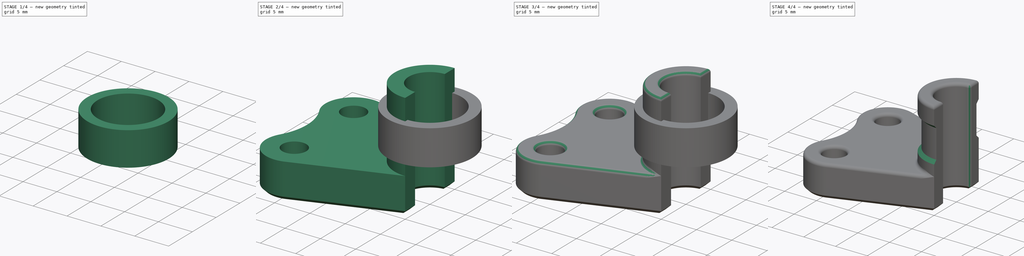
[diagram: build sequence overview — one tinted view per stage of 4, left to right]
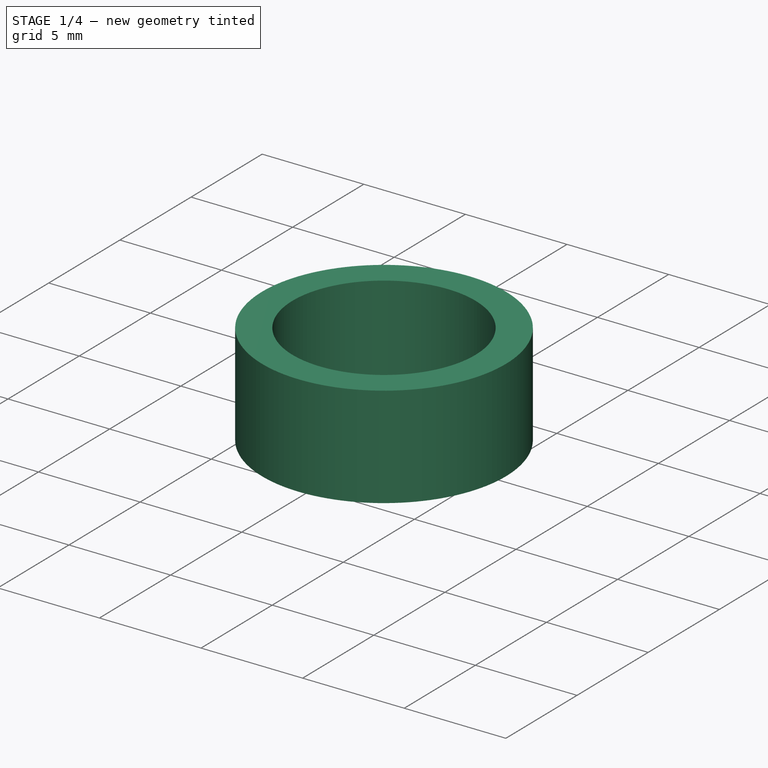
[diagram: stage 1 of 4 — iso view after this stage's code; geometry added in this stage tinted green]
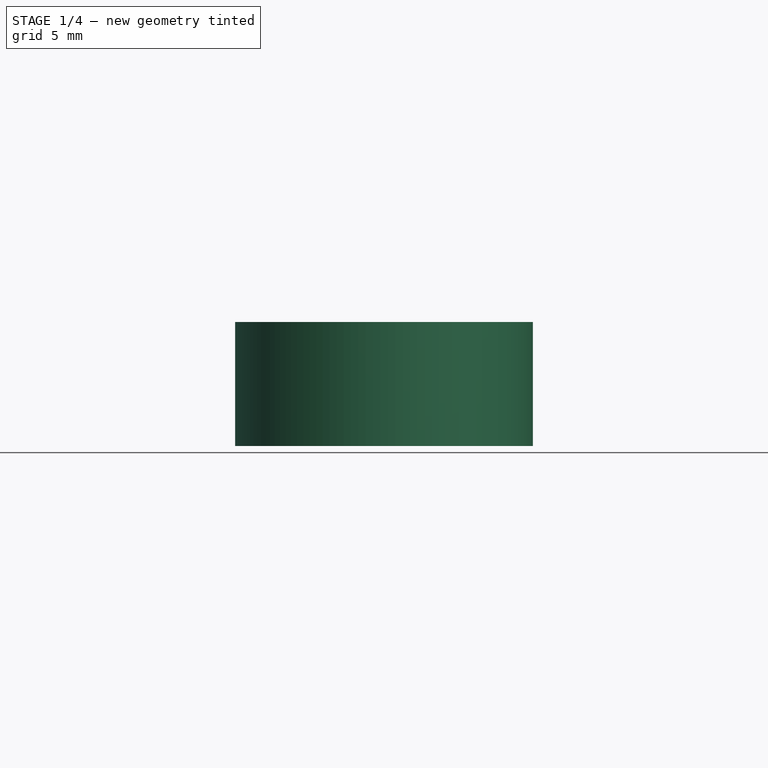
[diagram: stage 1 of 4 — front view after this stage's code; geometry added in this stage tinted green]
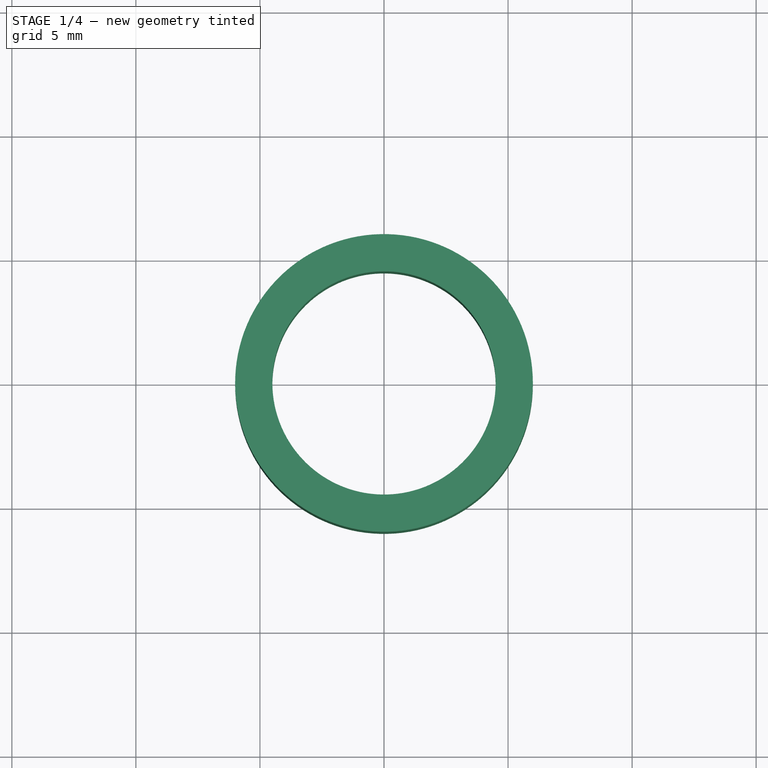
[diagram: stage 1 of 4 — top view after this stage's code; geometry added in this stage tinted green]
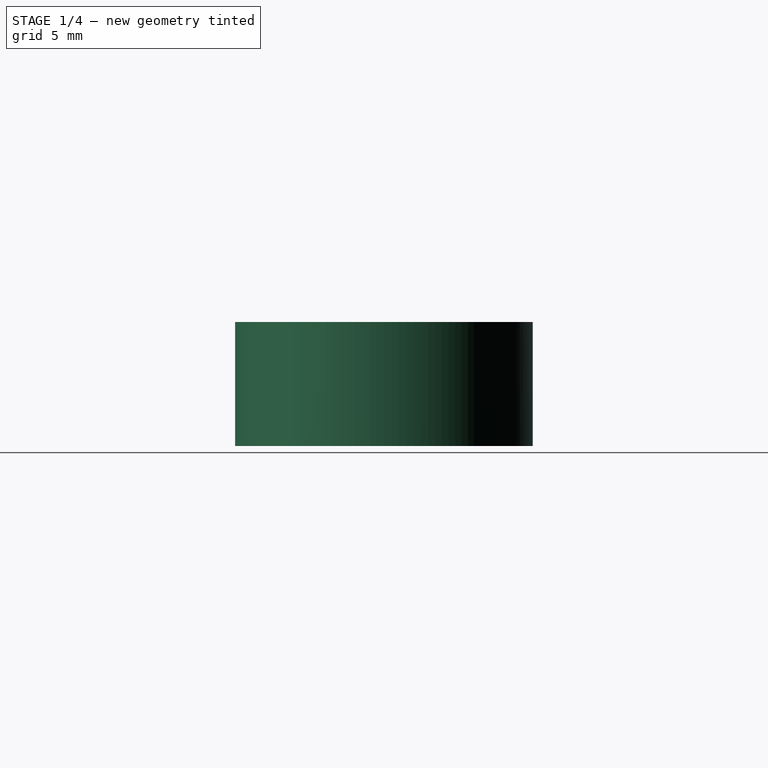
[diagram: stage 1 of 4 — right view after this stage's code; geometry added in this stage tinted green]
FCSTD DOCUMENT  (FreeCAD 0.16R6712 (Git))
Label: cables_effector
License: All rights reserved
LicenseURL: http://en.wikipedia.org/wiki/All_rights_reserved
objects: PartDesign::Fillet×3, Sketcher::SketchObject×2, PartDesign::Pad×2, PartDesign::Chamfer×2, Part::Cylinder×2, Part::Cut×2
note: 15 computed .brp shape members not serialized (recipe doc carries the construction recipe); baked Part::Feature solids carry a one-line shape summary decoded from their .brp

FEATURE [Part::Cylinder] Cylinder  label="Cilindro"
  Angle = 360
  Height = 5
  Placement = pos=(0,0,7) rot=(0,0,1;0rad)
  Radius = 4.5
FEATURE [Part::Cylinder] Cylinder001  label="Cilindro001"
  Angle = 360
  Height = 5
  Placement = pos=(0,0,7) rot=(0,0,1;0rad)
  Radius = 6
FEATURE [Part::Cut] Cut
  Base = -> Cylinder001
  Tool = -> Cylinder
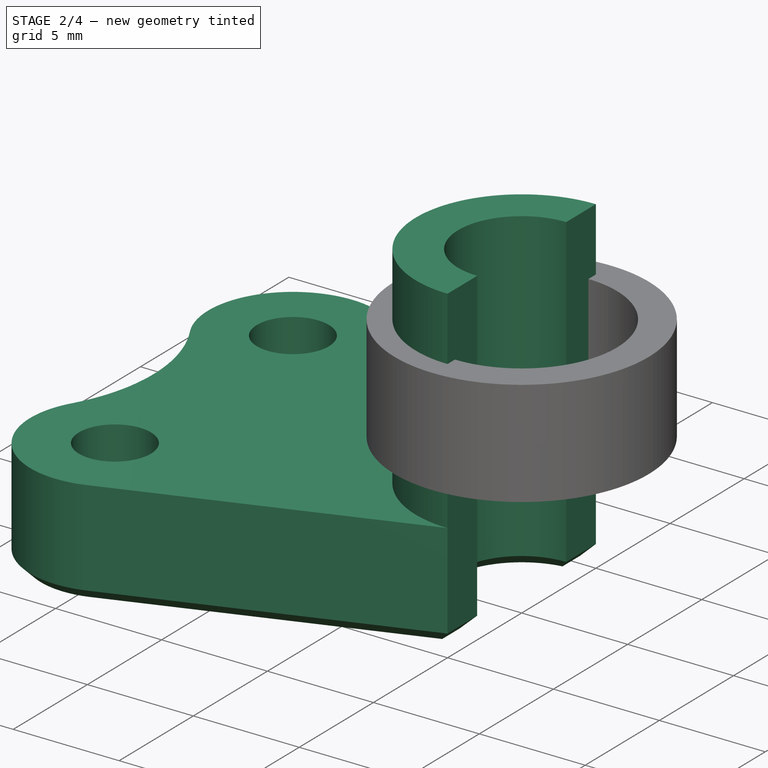
[diagram: stage 2 of 4 — iso view after this stage's code; geometry added in this stage tinted green]
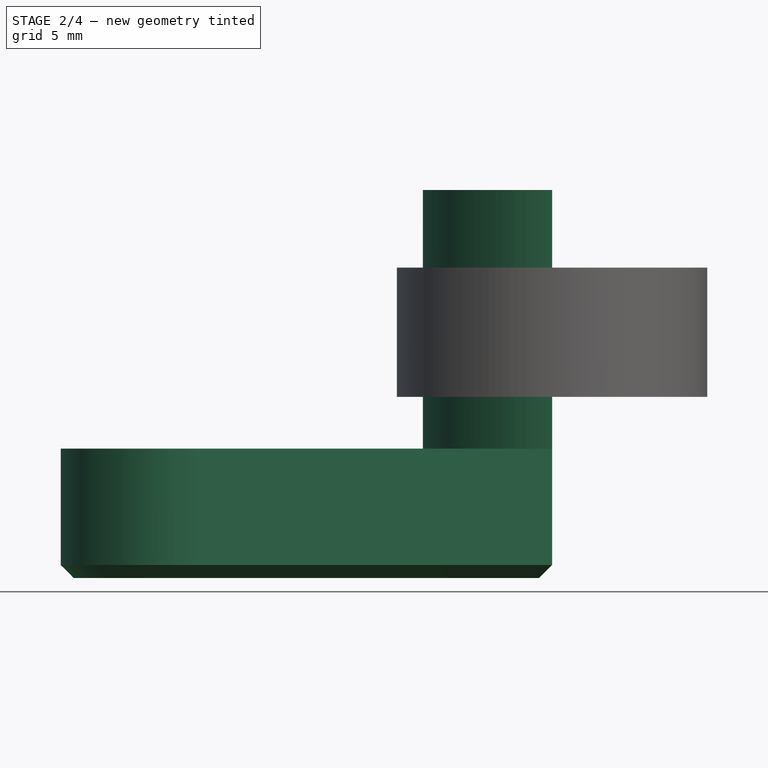
[diagram: stage 2 of 4 — front view after this stage's code; geometry added in this stage tinted green]
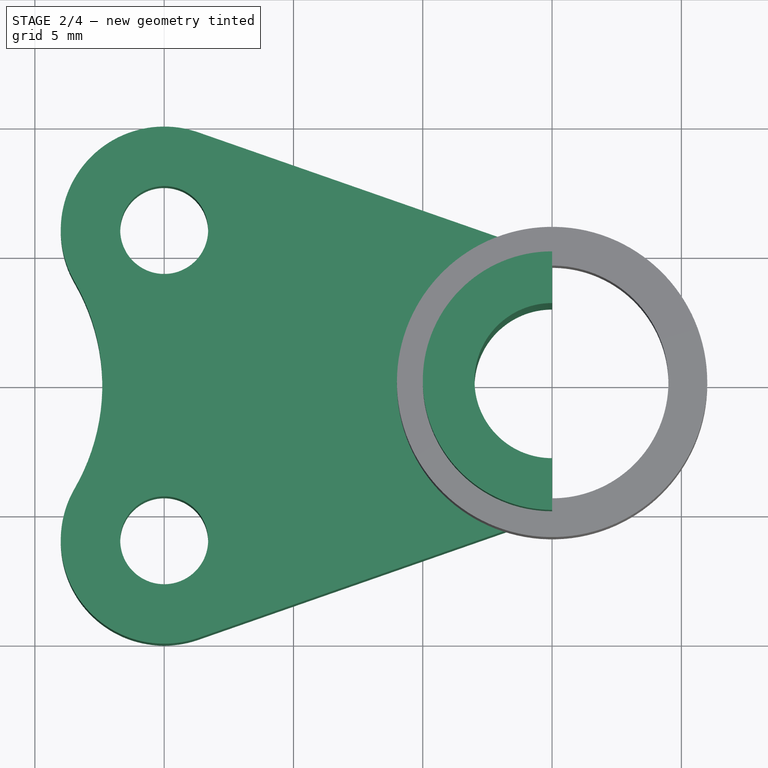
[diagram: stage 2 of 4 — top view after this stage's code; geometry added in this stage tinted green]
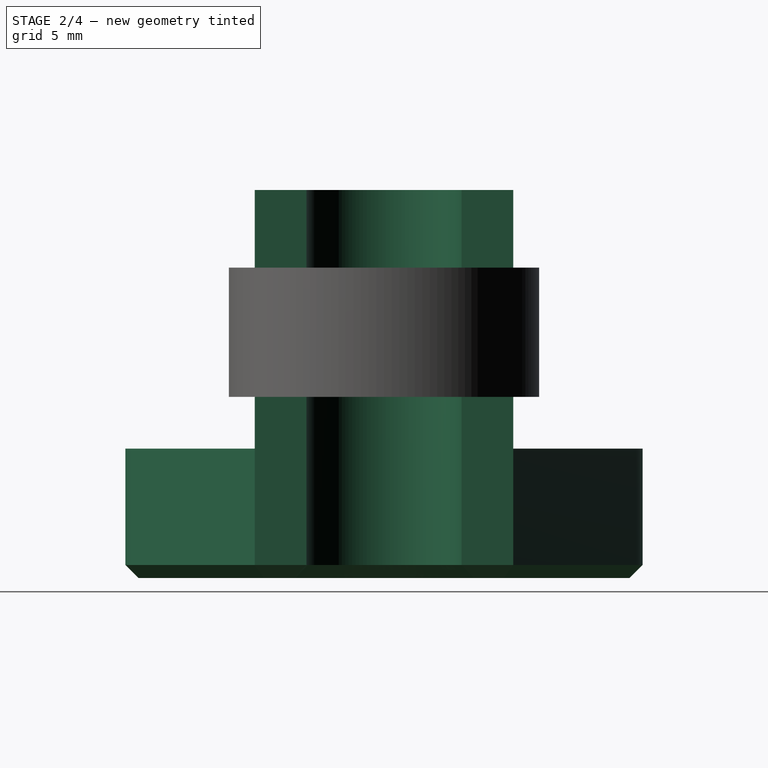
[diagram: stage 2 of 4 — right view after this stage's code; geometry added in this stage tinted green]
FEATURE [Sketcher::SketchObject] Sketch
  sketch-geometry (10):
    g0: ArcOfCircle CenterX=0 CenterY=0 CenterZ=0 NormalX=0 NormalY=0 NormalZ=1 Radius=3 StartAngle=1.5708 EndAngle=4.71239
    g1: Circle CenterX=-15 CenterY=6 CenterZ=0 NormalX=0 NormalY=0 NormalZ=1 Radius=1.7
    g2: Circle CenterX=-15 CenterY=-6 CenterZ=0 NormalX=0 NormalY=0 NormalZ=1 Radius=1.7
    g3: ArcOfCircle CenterX=-15 CenterY=6 CenterZ=0 NormalX=0 NormalY=0 NormalZ=1 Radius=4 StartAngle=1.23491 EndAngle=3.66519
    g4: ArcOfCircle CenterX=-15 CenterY=-6 CenterZ=0 NormalX=0 NormalY=0 NormalZ=1 Radius=4 StartAngle=2.61799 EndAngle=5.04828
    g5: LineSegment StartX=-13.6816 StartY=9.77648 StartZ=0 EndX=0 EndY=5 EndZ=0
    g6: LineSegment StartX=-13.6816 StartY=-9.77647 StartZ=0 EndX=0 EndY=-5 EndZ=0
    g7: ArcOfCircle CenterX=-25.3923 CenterY=0 CenterZ=0 NormalX=0 NormalY=0 NormalZ=1 Radius=8 StartAngle=5.75959 EndAngle=6.80678
    g8: LineSegment StartX=0 StartY=5 StartZ=0 EndX=0 EndY=3 EndZ=0
    g9: LineSegment StartX=0 StartY=-5 StartZ=0 EndX=0 EndY=-3 EndZ=0
  constraints (30):
    c: Coincident(g0,g-1)
    c: Radius(g1) = 1.7
    c: Equal(g1,g2)
    c: Symmetric(g2,g1,g-1)
    c: DistanceY(g2,g1) = 12
    c: DistanceX(g2,g-1) = 15
    c: Radius(g0) = 3
    c: PointOnObject(g0,g-2)
    c: PointOnObject(g0,g-2)
    c: Coincident(g3,g1)
    c: Coincident(g4,g2)
    c: Coincident(g5,g3)
    c: Coincident(g6,g4)
    c: Tangent(g3,g5)
    c: Tangent(g4,g6)
    c: Radius(g3) = 4
    c: PointOnObject(g7,g-1)
    c: Coincident(g7,g3)
    c: Coincident(g7,g4)
    c: Distance(g7,g2) = 12
    c: Tangent(g7,g4)
    c: Tangent(g7,g3)
    c: Coincident(g8,g5)
    c: Coincident(g8,g0)
    c: Coincident(g9,g6)
    c: Coincident(g9,g0)
    c: PointOnObject(g6,g-2)
    c: PointOnObject(g5,g-2)
    c: DistanceY(g9,g9) = 2
    c: DistanceY(g8,g8) = 2
FEATURE [PartDesign::Pad] Pad
  Length = 5
  Length2 = 100
  Sketch = -> Sketch
  Type = 0
FEATURE [PartDesign::Chamfer] Chamfer
  Base = -> Pad [Edge3,Edge6,Edge9,Edge12,Edge15,Edge18,Edge21,Edge23,Edge26,Edge29]
  Size = 0.5
FEATURE [Sketcher::SketchObject] Sketch001
  ExternalGeometry = -> [Chamfer]
  Placement = pos=(0,0,5) rot=(0,0,1;0rad)
  Support = -> Chamfer [Face4]
  sketch-geometry (4):
    g0: ArcOfCircle CenterX=0 CenterY=0 CenterZ=0 NormalX=0 NormalY=0 NormalZ=1 Radius=5 StartAngle=1.5708 EndAngle=4.71239
    g1: ArcOfCircle CenterX=0 CenterY=0 CenterZ=0 NormalX=0 NormalY=0 NormalZ=1 Radius=3 StartAngle=1.5708 EndAngle=4.71239
    g2: LineSegment StartX=0 StartY=3 StartZ=0 EndX=0 EndY=5 EndZ=0
    g3: LineSegment StartX=0 StartY=-5 StartZ=0 EndX=0 EndY=-3 EndZ=0
  constraints (10):
    c: Coincident(g0,g-1)
    c: Coincident(g0,g-4)
    c: Coincident(g0,g-5)
    c: Coincident(g1,g-1)
    c: Coincident(g1,g-3)
    c: Coincident(g1,g-3)
    c: Coincident(g2,g1)
    c: Coincident(g2,g0)
    c: Coincident(g3,g0)
    c: Coincident(g3,g1)
FEATURE [PartDesign::Pad] Pad001
  Length = 10
  Length2 = 100
  Sketch = -> Sketch001
  Type = 0
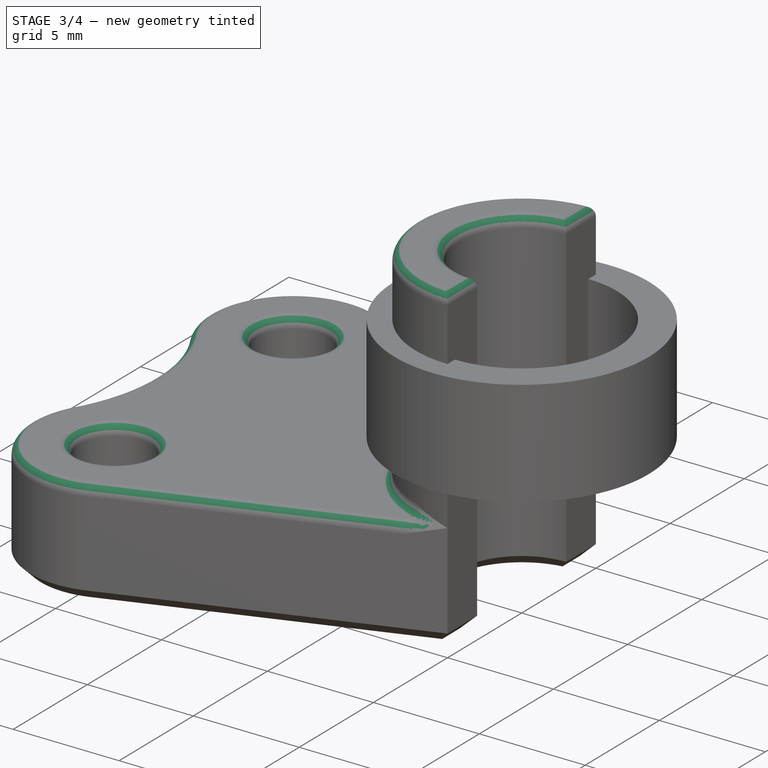
[diagram: stage 3 of 4 — iso view after this stage's code; geometry added in this stage tinted green]
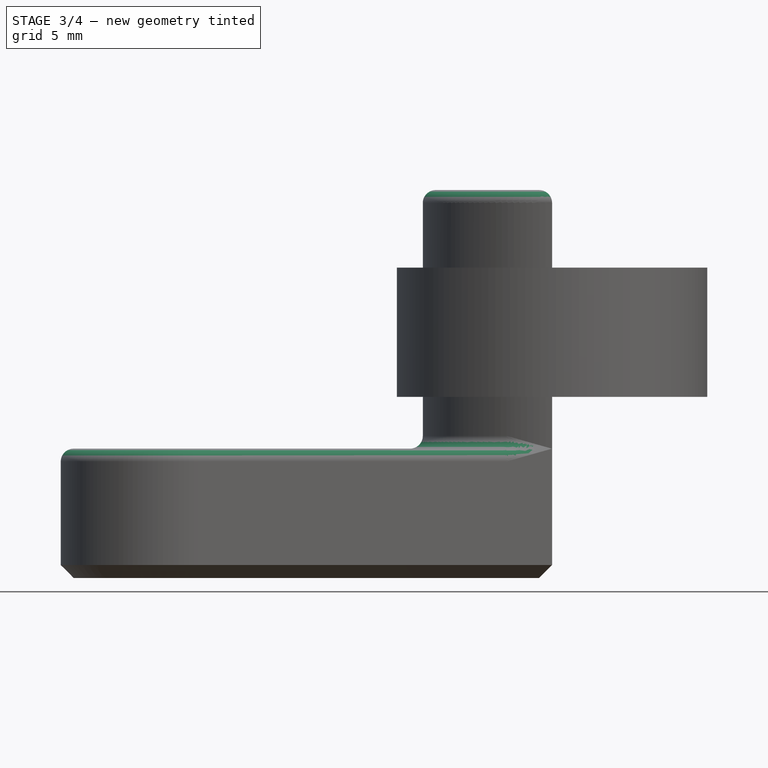
[diagram: stage 3 of 4 — front view after this stage's code; geometry added in this stage tinted green]
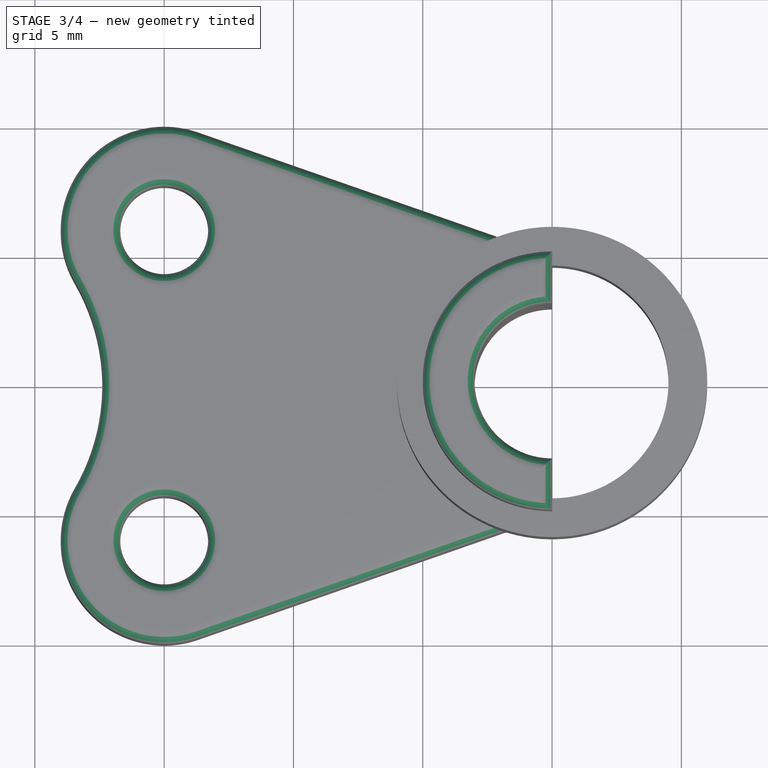
[diagram: stage 3 of 4 — top view after this stage's code; geometry added in this stage tinted green]
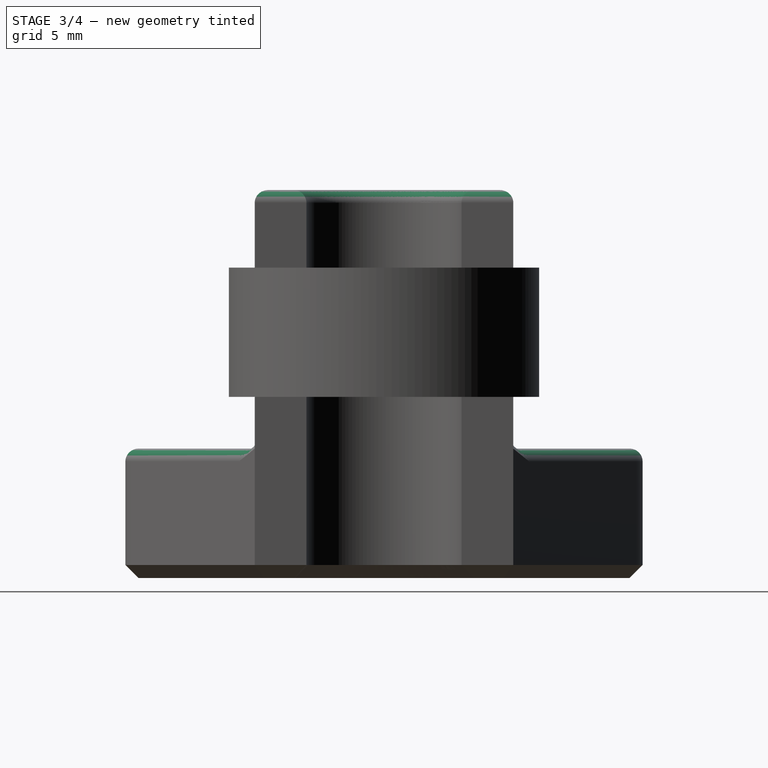
[diagram: stage 3 of 4 — right view after this stage's code; geometry added in this stage tinted green]
FEATURE [PartDesign::Fillet] Fillet
  Base = -> Pad001 [Edge8,Edge6,Edge9,Edge10,Edge11,Edge12,Edge13,Edge14]
  Radius = 0.5
FEATURE [PartDesign::Fillet] Fillet001
  Base = -> Fillet [Edge16,Edge4,Edge13,Edge17]
  Radius = 0.5
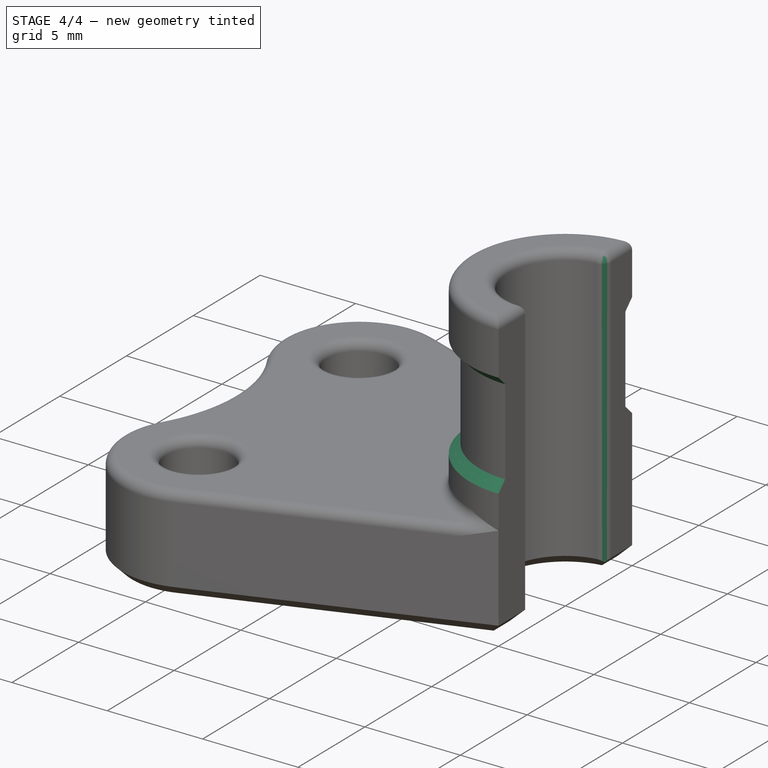
[diagram: stage 4 of 4 — iso view after this stage's code; geometry added in this stage tinted green]
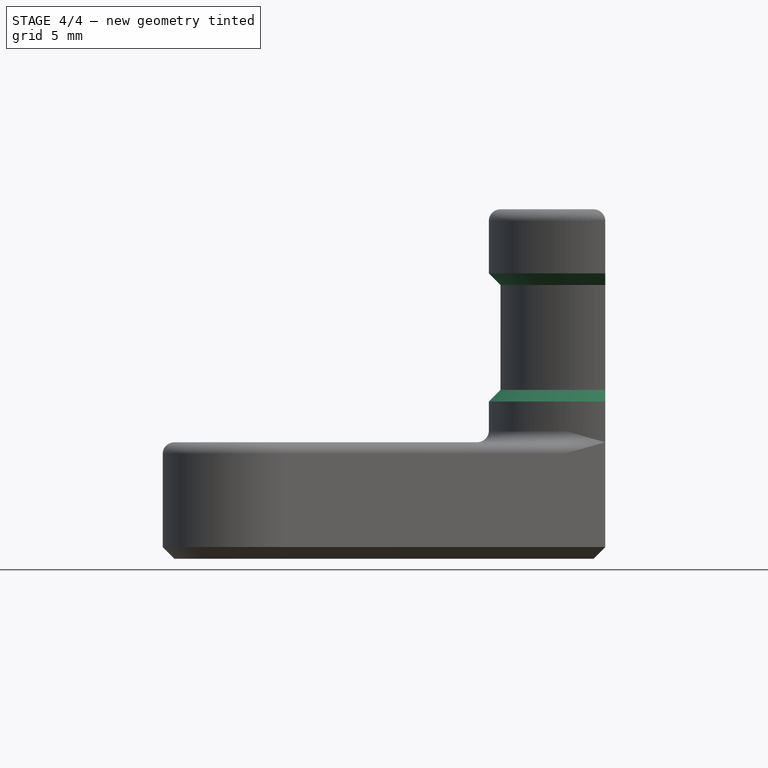
[diagram: stage 4 of 4 — front view after this stage's code; geometry added in this stage tinted green]
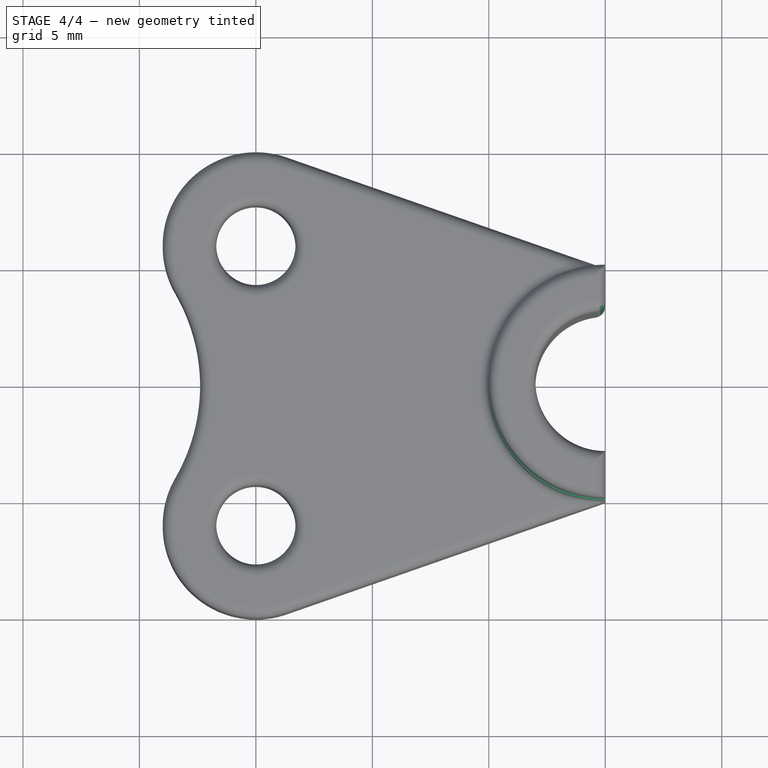
[diagram: stage 4 of 4 — top view after this stage's code; geometry added in this stage tinted green]
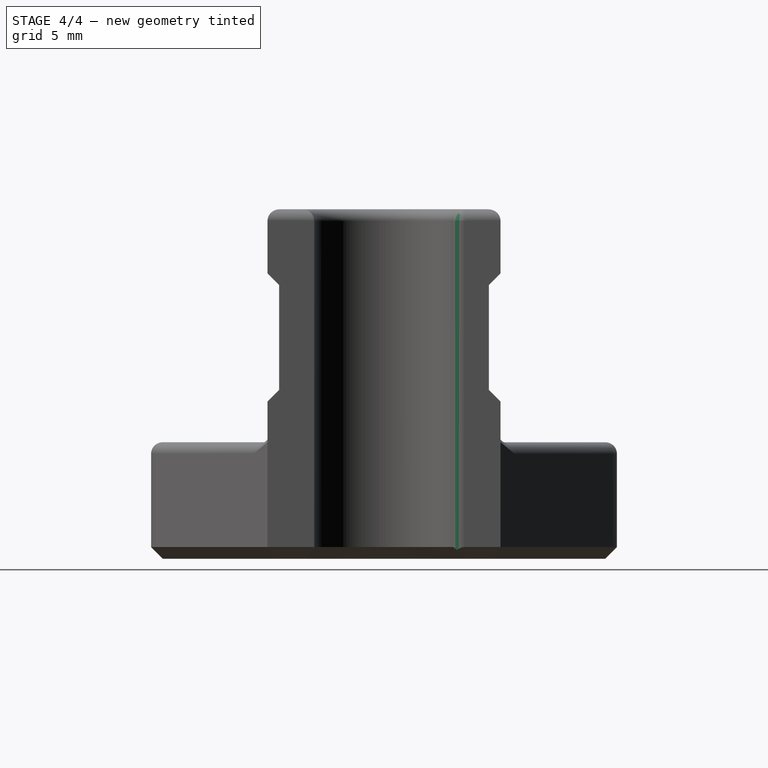
[diagram: stage 4 of 4 — right view after this stage's code; geometry added in this stage tinted green]
FEATURE [PartDesign::Fillet] Fillet002
  Base = -> Fillet001 [Edge17]
  Radius = 0.5
FEATURE [Part::Cut] Cut001
  Base = -> Fillet002
  Tool = -> Cut
FEATURE [PartDesign::Chamfer] Chamfer001
  Base = -> Cut001 [Edge21,Edge19,Edge16,Edge15]
  Size = 0.249
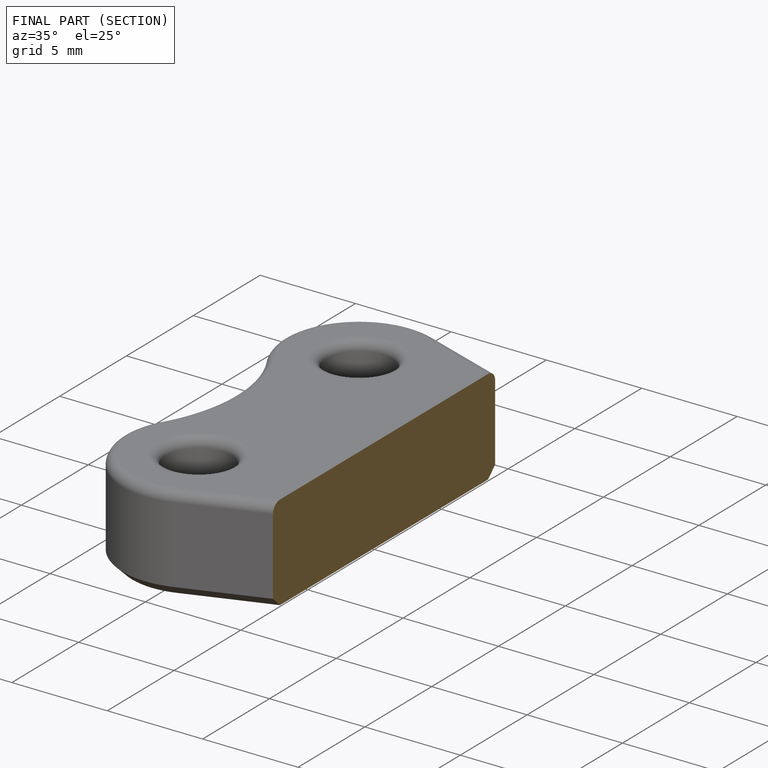
[diagram: finished part — half-section view (interior)]
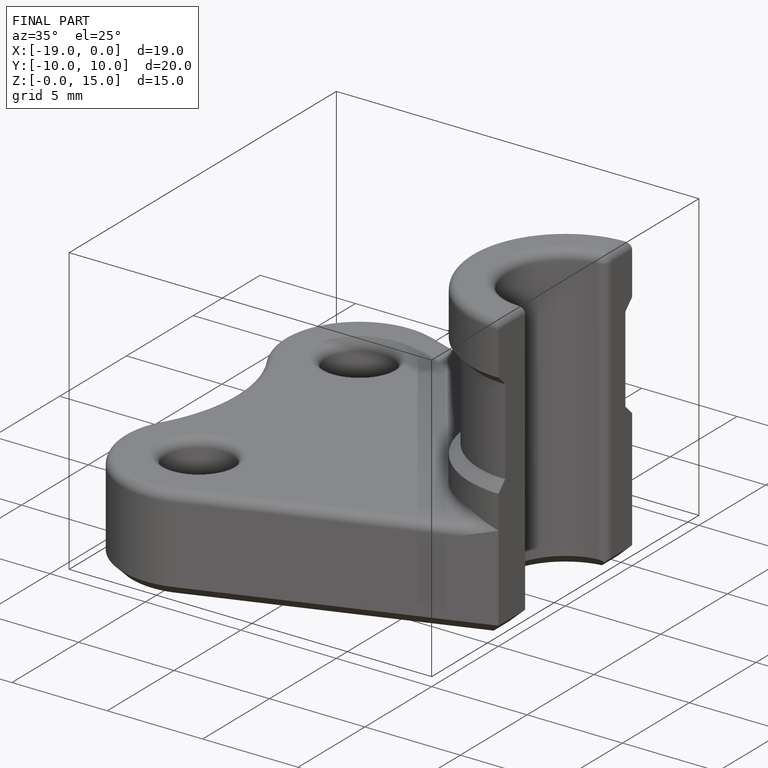
[diagram: finished part — iso view with bounding-box wireframe]
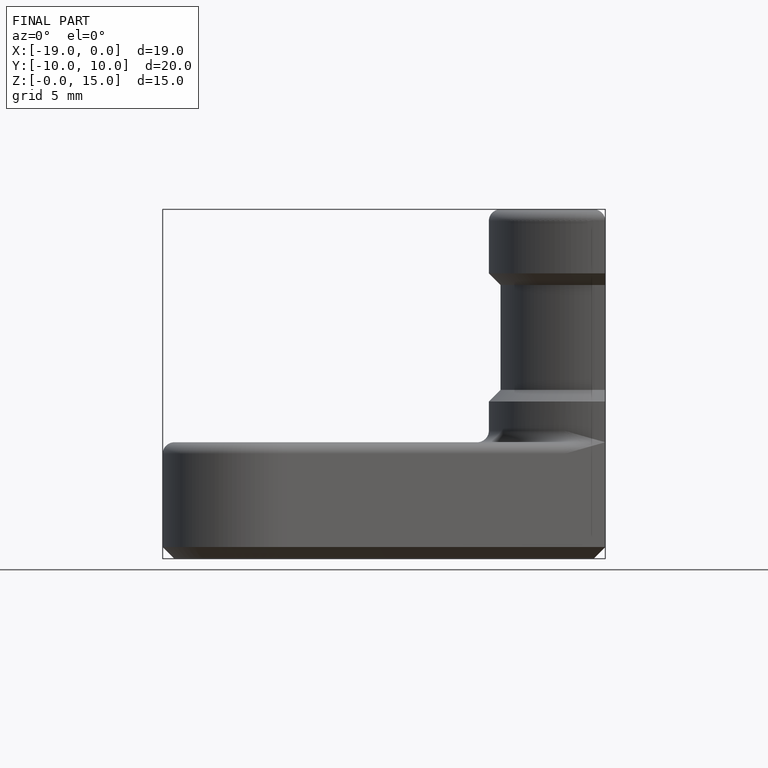
[diagram: finished part — front view with bounding-box wireframe]
